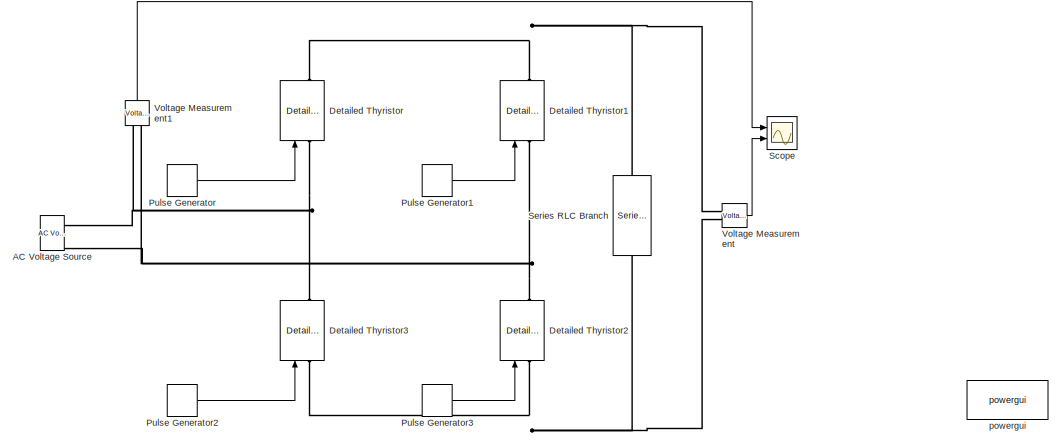
[diagram: root canvas - part 1/2, full width, top band]
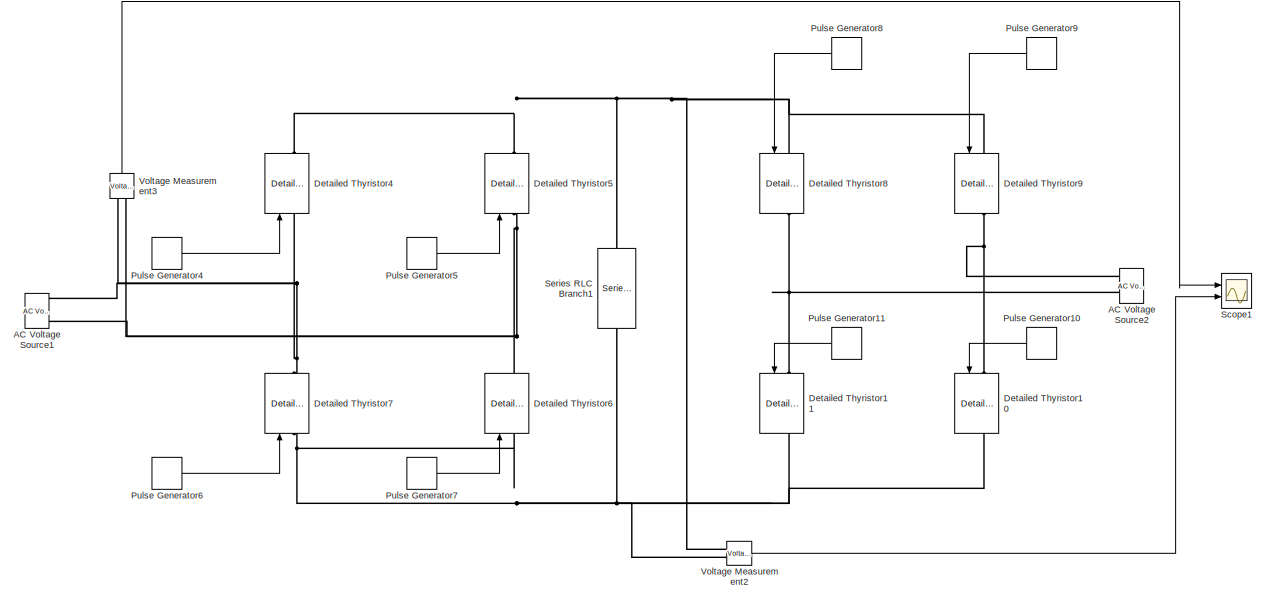
[diagram: root canvas - part 2/2, full width, bottom band]
MODEL slx_2f3f8694f56f
KIND model
CONFIG AbsTol = auto
CONFIG EnableMultiTasking = off
CONFIG FixedStep = auto
CONFIG MaxStep = auto
CONFIG MinStep = auto
CONFIG RelTol = 1e-4
CONFIG SampleTimeConstraint = Unconstrained
CONFIG Solver = VariableStepAuto
CONFIG SolverName = VariableStepAuto
CONFIG StartTime = 0.0
CONFIG StopTime = 0.08
BLOCK [Reference] AC Voltage Source  REF=powerlib/Electrical
Sources/AC Voltage Source
  Ports = [0, 0, 0, 0, 0, 1, 1]
  SourceBlock = powerlib/Electrical\nSources/AC Voltage Source
  SourceProductBaseCode = PS
  SourceProductName = Simscape Power Systems
  SourceType = AC Voltage Source
BLOCK [Reference] AC Voltage Source1  REF=powerlib/Electrical
Sources/AC Voltage Source
  Ports = [0, 0, 0, 0, 0, 1, 1]
  SourceBlock = powerlib/Electrical\nSources/AC Voltage Source
  SourceProductBaseCode = PS
  SourceProductName = Simscape Power Systems
  SourceType = AC Voltage Source
BLOCK [Reference] AC Voltage Source2  REF=powerlib/Electrical
Sources/AC Voltage Source
  Ports = [0, 0, 0, 0, 0, 1, 1]
  SourceBlock = powerlib/Electrical\nSources/AC Voltage Source
  SourceProductBaseCode = PS
  SourceProductName = Simscape Power Systems
  SourceType = AC Voltage Source
BLOCK [Reference] Detailed Thyristor  REF=powerlib/Power
Electronics/Detailed Thyristor
  Ports = [1, 1, 0, 0, 0, 1, 1]
  SourceBlock = powerlib/Power\nElectronics/Detailed Thyristor
  SourceProductBaseCode = PS
  SourceProductName = Simscape Power Systems
  SourceType = Detailed Thyristor
BLOCK [Reference] Detailed Thyristor1  REF=powerlib/Power
Electronics/Detailed Thyristor
  Ports = [1, 1, 0, 0, 0, 1, 1]
  SourceBlock = powerlib/Power\nElectronics/Detailed Thyristor
  SourceProductBaseCode = PS
  SourceProductName = Simscape Power Systems
  SourceType = Detailed Thyristor
BLOCK [Reference] Detailed Thyristor10  REF=powerlib/Power
Electronics/Detailed Thyristor
  Ports = [1, 1, 0, 0, 0, 1, 1]
  SourceBlock = powerlib/Power\nElectronics/Detailed Thyristor
  SourceProductBaseCode = PS
  SourceProductName = Simscape Power Systems
  SourceType = Detailed Thyristor
BLOCK [Reference] Detailed Thyristor11  REF=powerlib/Power
Electronics/Detailed Thyristor
  Ports = [1, 1, 0, 0, 0, 1, 1]
  SourceBlock = powerlib/Power\nElectronics/Detailed Thyristor
  SourceProductBaseCode = PS
  SourceProductName = Simscape Power Systems
  SourceType = Detailed Thyristor
BLOCK [Reference] Detailed Thyristor2  REF=powerlib/Power
Electronics/Detailed Thyristor
  Ports = [1, 1, 0, 0, 0, 1, 1]
  SourceBlock = powerlib/Power\nElectronics/Detailed Thyristor
  SourceProductBaseCode = PS
  SourceProductName = Simscape Power Systems
  SourceType = Detailed Thyristor
BLOCK [Reference] Detailed Thyristor3  REF=powerlib/Power
Electronics/Detailed Thyristor
  Ports = [1, 1, 0, 0, 0, 1, 1]
  SourceBlock = powerlib/Power\nElectronics/Detailed Thyristor
  SourceProductBaseCode = PS
  SourceProductName = Simscape Power Systems
  SourceType = Detailed Thyristor
BLOCK [Reference] Detailed Thyristor4  REF=powerlib/Power
Electronics/Detailed Thyristor
  Ports = [1, 1, 0, 0, 0, 1, 1]
  SourceBlock = powerlib/Power\nElectronics/Detailed Thyristor
  SourceProductBaseCode = PS
  SourceProductName = Simscape Power Systems
  SourceType = Detailed Thyristor
BLOCK [Reference] Detailed Thyristor5  REF=powerlib/Power
Electronics/Detailed Thyristor
  Ports = [1, 1, 0, 0, 0, 1, 1]
  SourceBlock = powerlib/Power\nElectronics/Detailed Thyristor
  SourceProductBaseCode = PS
  SourceProductName = Simscape Power Systems
  SourceType = Detailed Thyristor
BLOCK [Reference] Detailed Thyristor6  REF=powerlib/Power
Electronics/Detailed Thyristor
  Ports = [1, 1, 0, 0, 0, 1, 1]
  SourceBlock = powerlib/Power\nElectronics/Detailed Thyristor
  SourceProductBaseCode = PS
  SourceProductName = Simscape Power Systems
  SourceType = Detailed Thyristor
BLOCK [Reference] Detailed Thyristor7  REF=powerlib/Power
Electronics/Detailed Thyristor
  Ports = [1, 1, 0, 0, 0, 1, 1]
  SourceBlock = powerlib/Power\nElectronics/Detailed Thyristor
  SourceProductBaseCode = PS
  SourceProductName = Simscape Power Systems
  SourceType = Detailed Thyristor
BLOCK [Reference] Detailed Thyristor8  REF=powerlib/Power
Electronics/Detailed Thyristor
  Ports = [1, 1, 0, 0, 0, 1, 1]
  SourceBlock = powerlib/Power\nElectronics/Detailed Thyristor
  SourceProductBaseCode = PS
  SourceProductName = Simscape Power Systems
  SourceType = Detailed Thyristor
BLOCK [Reference] Detailed Thyristor9  REF=powerlib/Power
Electronics/Detailed Thyristor
  Ports = [1, 1, 0, 0, 0, 1, 1]
  SourceBlock = powerlib/Power\nElectronics/Detailed Thyristor
  SourceProductBaseCode = PS
  SourceProductName = Simscape Power Systems
  SourceType = Detailed Thyristor
BLOCK [DiscretePulseGenerator] Pulse Generator
  Period = .02
  PhaseDelay = 30/360*0.02
  Ports = [0, 1]
  PulseType = Time based
  PulseWidth = 5
BLOCK [DiscretePulseGenerator] Pulse Generator1
  Period = 0.02
  PhaseDelay = 210/360*0.02
  Ports = [0, 1]
  PulseType = Time based
  PulseWidth = 5
BLOCK [DiscretePulseGenerator] Pulse Generator10
  Period = 0.02
  PhaseDelay = 150/360*0.02
  Ports = [0, 1]
  PulseType = Time based
  PulseWidth = 5
BLOCK [DiscretePulseGenerator] Pulse Generator11
  Period = 0.02
  PhaseDelay = 330/360*0.02
  Ports = [0, 1]
  PulseType = Time based
  PulseWidth = 5
BLOCK [DiscretePulseGenerator] Pulse Generator2
  Period = 0.02
  PhaseDelay = 210/360*0.02
  Ports = [0, 1]
  PulseType = Time based
  PulseWidth = 5
BLOCK [DiscretePulseGenerator] Pulse Generator3
  Period = 0.02
  PhaseDelay = 30/360*0.02
  Ports = [0, 1]
  PulseType = Time based
  PulseWidth = 5
BLOCK [DiscretePulseGenerator] Pulse Generator4
  Period = .02
  PhaseDelay = 30/360*0.02
  Ports = [0, 1]
  PulseType = Time based
  PulseWidth = 5
BLOCK [DiscretePulseGenerator] Pulse Generator5
  Period = 0.02
  PhaseDelay = 210/360*0.02
  Ports = [0, 1]
  PulseType = Time based
  PulseWidth = 5
BLOCK [DiscretePulseGenerator] Pulse Generator6
  Period = 0.02
  PhaseDelay = 210/360*0.02
  Ports = [0, 1]
  PulseType = Time based
  PulseWidth = 5
BLOCK [DiscretePulseGenerator] Pulse Generator7
  Period = 0.02
  PhaseDelay = 30/360*0.02
  Ports = [0, 1]
  PulseType = Time based
  PulseWidth = 5
BLOCK [DiscretePulseGenerator] Pulse Generator8
  Period = 0.02
  PhaseDelay = 150/360*0.02
  Ports = [0, 1]
  PulseType = Time based
  PulseWidth = 5
BLOCK [DiscretePulseGenerator] Pulse Generator9
  Period = 0.02
  PhaseDelay = 330/360*0.02
  Ports = [0, 1]
  PulseType = Time based
  PulseWidth = 5
BLOCK [Scope] Scope
  Floating = off
  NumInputPorts = 2
  Ports = [2]
  ScopeSpecificationString = Simulink.scopes.TimeScopeBlockCfg('CurrentConfiguration', extmgr.ConfigurationSet(extmgr.Configuration('Core','General UI',true),extmgr.Configuration('Core','Source UI',true),extmgr.Configuration('Sources','WiredSimulink',true),extmgr.Configuration('Visuals','Time Domain',true,'SerializedDisplays',{struct('MinYLimReal','-287.31709','MaxYLimReal','287.27867','YLabelReal','','MinYLimMag',' 0.00000',...<+2078ch>
BLOCK [Scope] Scope1
  Floating = off
  NumInputPorts = 2
  Ports = [2]
  ScopeSpecificationString = Simulink.scopes.TimeScopeBlockCfg('CurrentConfiguration', extmgr.ConfigurationSet(extmgr.Configuration('Core','General UI',true),extmgr.Configuration('Core','Source UI',true),extmgr.Configuration('Sources','WiredSimulink',true,'DataLoggingVariableName','ScopeData1'),extmgr.Configuration('Visuals','Time Domain',true,'SerializedDisplays',{struct('MinYLimReal','-286.52982','MaxYLimReal','286.52134','...<+2119ch>
BLOCK [Reference] Series RLC Branch  REF=powerlib/Elements/Series RLC Branch
  Ports = [0, 0, 0, 0, 0, 1, 1]
  SourceBlock = powerlib/Elements/Series RLC Branch
  SourceProductBaseCode = PS
  SourceProductName = Simscape Power Systems
  SourceType = Series RLC Branch
BLOCK [Reference] Series RLC Branch1  REF=powerlib/Elements/Series RLC Branch
  Ports = [0, 0, 0, 0, 0, 1, 1]
  SourceBlock = powerlib/Elements/Series RLC Branch
  SourceProductBaseCode = PS
  SourceProductName = Simscape Power Systems
  SourceType = Series RLC Branch
BLOCK [Reference] Voltage Measurement  REF=powerlib/Measurements/Voltage Measurement
  Ports = [0, 1, 0, 0, 0, 2]
  SourceBlock = powerlib/Measurements/Voltage Measurement
  SourceProductBaseCode = PS
  SourceProductName = Simscape Power Systems
  SourceType = Voltage Measurement
  UserDataPersistent = on
BLOCK [Reference] Voltage Measurement1  REF=powerlib/Measurements/Voltage Measurement
  Ports = [0, 1, 0, 0, 0, 2]
  SourceBlock = powerlib/Measurements/Voltage Measurement
  SourceProductBaseCode = PS
  SourceProductName = Simscape Power Systems
  SourceType = Voltage Measurement
  UserDataPersistent = on
BLOCK [Reference] Voltage Measurement2  REF=powerlib/Measurements/Voltage Measurement
  Ports = [0, 1, 0, 0, 0, 2]
  SourceBlock = powerlib/Measurements/Voltage Measurement
  SourceProductBaseCode = PS
  SourceProductName = Simscape Power Systems
  SourceType = Voltage Measurement
  UserDataPersistent = on
BLOCK [Reference] Voltage Measurement3  REF=powerlib/Measurements/Voltage Measurement
  Ports = [0, 1, 0, 0, 0, 2]
  SourceBlock = powerlib/Measurements/Voltage Measurement
  SourceProductBaseCode = PS
  SourceProductName = Simscape Power Systems
  SourceType = Voltage Measurement
  UserDataPersistent = on
BLOCK [Reference] powergui  REF=powerlib/powergui
  Ports = []
  Priority = 1
  SourceBlock = powerlib/powergui
  SourceProductBaseCode = PS
  SourceProductName = Simscape Power Systems
  SourceType = PSB option menu block
LINE Pulse Generator10:1 -> Detailed Thyristor10:1
LINE Pulse Generator11:1 -> Detailed Thyristor11:1
LINE Pulse Generator1:1 -> Detailed Thyristor1:1
LINE Pulse Generator2:1 -> Detailed Thyristor3:1
LINE Pulse Generator3:1 -> Detailed Thyristor2:1
LINE Pulse Generator4:1 -> Detailed Thyristor4:1
LINE Pulse Generator5:1 -> Detailed Thyristor5:1
LINE Pulse Generator6:1 -> Detailed Thyristor7:1
LINE Pulse Generator7:1 -> Detailed Thyristor6:1
LINE Pulse Generator8:1 -> Detailed Thyristor8:1
LINE Pulse Generator9:1 -> Detailed Thyristor9:1
LINE Pulse Generator:1 -> Detailed Thyristor:1
LINE Voltage Measurement1:1 -> Scope:1
LINE Voltage Measurement2:1 -> Scope1:2
LINE Voltage Measurement3:1 -> Scope1:1
LINE Voltage Measurement:1 -> Scope:2
PNET net1: AC Voltage Source1:LConn1 -- Detailed Thyristor5:LConn1 -- Detailed Thyristor6:RConn1 -- Voltage Measurement3:LConn2
PNET net2: AC Voltage Source1:RConn1 -- Detailed Thyristor4:LConn1 -- Detailed Thyristor7:RConn1 -- Voltage Measurement3:LConn1
PNET net3: AC Voltage Source2:LConn1 -- Detailed Thyristor11:LConn1 -- Detailed Thyristor8:RConn1
PNET net4: AC Voltage Source2:RConn1 -- Detailed Thyristor10:LConn1 -- Detailed Thyristor9:RConn1
PNET net5: AC Voltage Source:LConn1 -- Detailed Thyristor1:LConn1 -- Detailed Thyristor2:RConn1 -- Voltage Measurement1:LConn2
PNET net6: AC Voltage Source:RConn1 -- Detailed Thyristor3:RConn1 -- Detailed Thyristor:LConn1 -- Voltage Measurement1:LConn1
PNET net7: Detailed Thyristor10:RConn1 -- Detailed Thyristor11:RConn1 -- Detailed Thyristor6:LConn1 -- Detailed Thyristor7:LConn1 -- Series RLC Branch1:RConn1 -- Voltage Measurement2:LConn2
PNET net8: Detailed Thyristor1:RConn1 -- Detailed Thyristor:RConn1 -- Series RLC Branch:RConn1 -- Voltage Measurement:LConn1
PNET net9: Detailed Thyristor2:LConn1 -- Detailed Thyristor3:LConn1 -- Series RLC Branch:LConn1 -- Voltage Measurement:LConn2
PNET net10: Detailed Thyristor4:RConn1 -- Detailed Thyristor5:RConn1 -- Detailed Thyristor8:LConn1 -- Detailed Thyristor9:LConn1 -- Series RLC Branch1:LConn1 -- Voltage Measurement2:LConn1
note: PNET lines group multi-terminal physical nets as a canonical sorted terminal list (undirected conserving connections); 2-terminal nets keep the pairwise PLINE form
